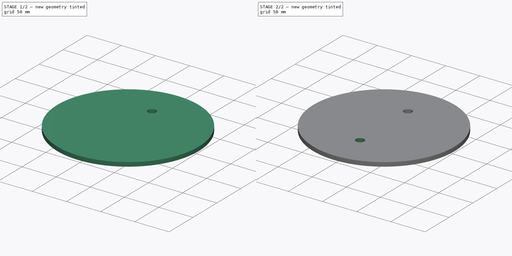
[diagram: build sequence overview — one tinted view per stage of 2, left to right]
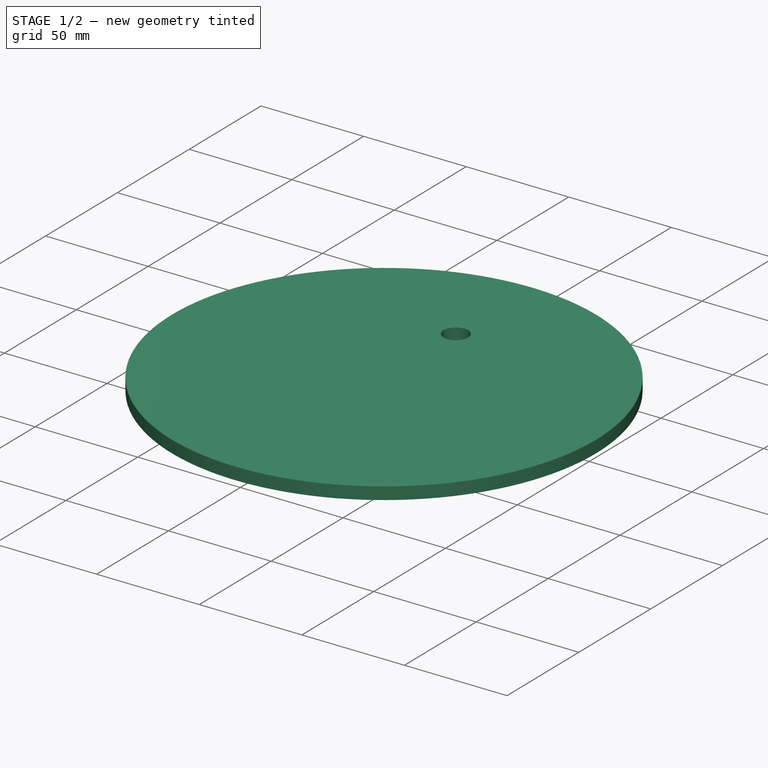
[diagram: stage 1 of 2 — iso view after this stage's code; geometry added in this stage tinted green]
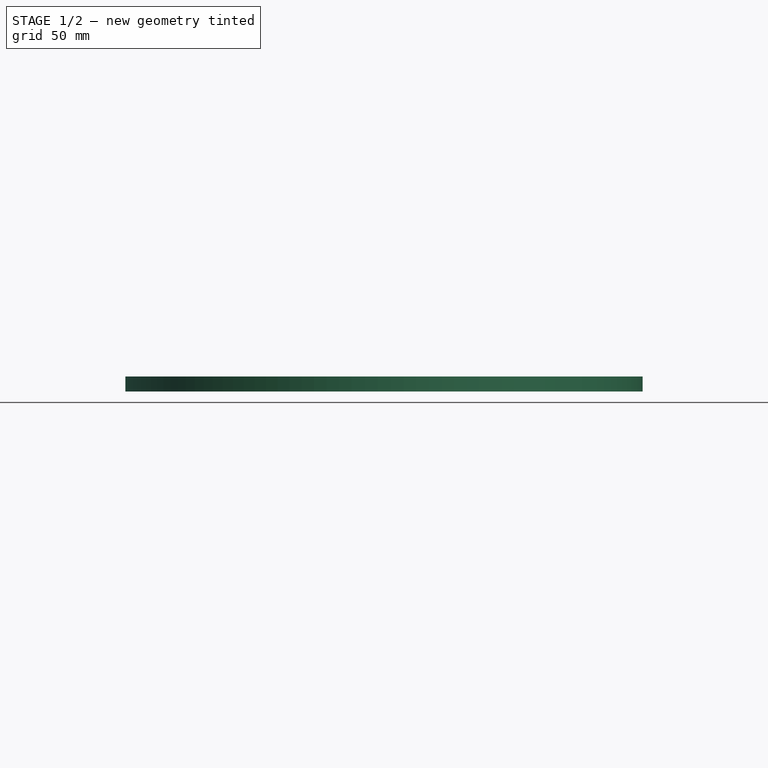
[diagram: stage 1 of 2 — front view after this stage's code; geometry added in this stage tinted green]
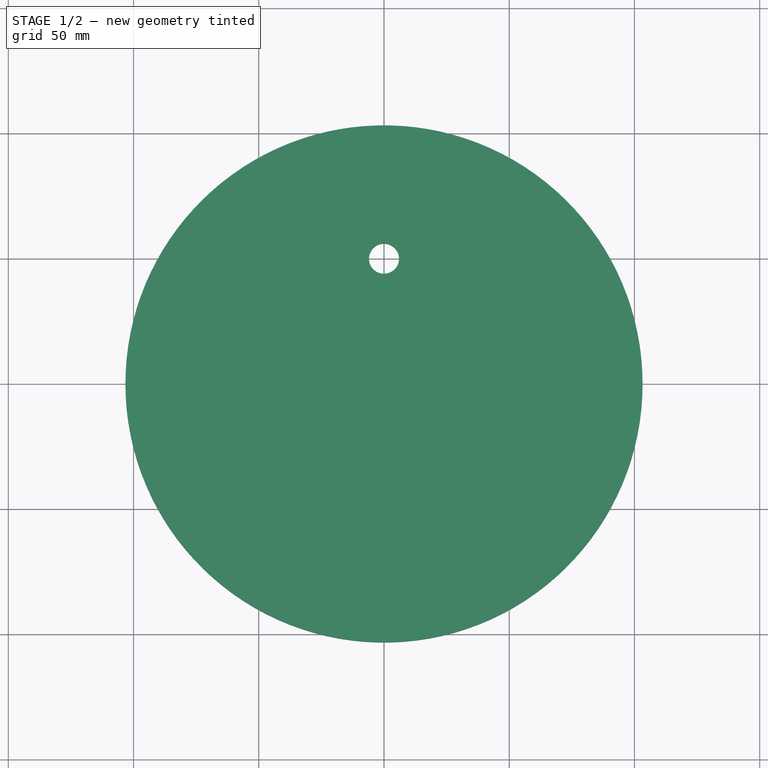
[diagram: stage 1 of 2 — top view after this stage's code; geometry added in this stage tinted green]
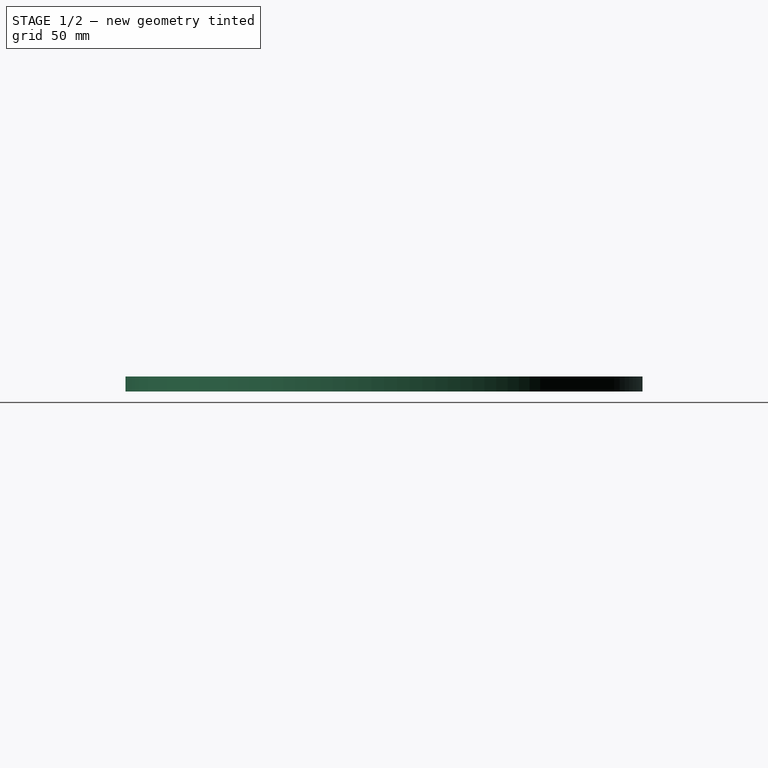
[diagram: stage 1 of 2 — right view after this stage's code; geometry added in this stage tinted green]
FCSTD DOCUMENT  (FreeCAD 0.20R29177 (Git))
Label: Rotor_MagnetJig_Disk
Comment: Similar to Rotor_Mold_Island with varying radius and thickness.
License: All rights reserved
LicenseURL: http://en.wikipedia.org/wiki/All_rights_reserved
objects: Sketcher::SketchObject×2, PartDesign::Pad×1, PartDesign::Pocket×1, Spreadsheet::Sheet×1, PartDesign::PolarPattern×1, PartDesign::Body×1
note: 8 computed .brp shape members not serialized (recipe doc carries the construction recipe); baked Part::Feature solids carry a one-line shape summary decoded from their .brp
EXTERNAL_REF file=../../../Master_of_Puppets.FCStd obj=Alternator
EXTERNAL_REF file=../../../Master_of_Puppets.FCStd obj=Hub
EXTERNAL_REF file=../../../Master_of_Puppets.FCStd obj=Spreadsheet

FEATURE [Sketcher::SketchObject] Sketch
  FullyConstrained = true
  MapMode = 5
  Support = -> [XY_Plane001]
  expr: Constraints[1] = Spreadsheet.DistanceOfMagnetFromCenter
  sketch-geometry (1):
    g0: Circle CenterX=0 CenterY=0 CenterZ=0 NormalX=0 NormalY=0 NormalZ=1 AngleXU=0 Radius=103.248
  constraints (2):
    c: Coincident(g0,g-1)
    c: Radius(g0) = 103.248
FEATURE [PartDesign::Pad] Pad
  AllowMultiFace = false
  Direction = (0,0,1)
  Length = 6
  Length2 = 100
  Profile = -> Sketch
  Type = 0
  expr: Length = Spreadsheet.MagnetJigThickness
FEATURE [Sketcher::SketchObject] Sketch001
  FullyConstrained = true
  MapMode = 5
  Placement = pos=(0,0,6) rot=(0,0,1;0rad)
  Support = -> [Pad]
  expr: Constraints[3] = Spreadsheet.HubPitchCircleRadius
  expr: Constraints[4] = Spreadsheet.HubHolesRadius
  sketch-geometry (2):
    g0: LineSegment StartX=0 StartY=50 StartZ=0 EndX=0 EndY=0 EndZ=0
    g1: Circle CenterX=0 CenterY=50 CenterZ=0 NormalX=0 NormalY=0 NormalZ=1 AngleXU=0 Radius=6
  constraints (5):
    c: Coincident(g0,g-1)
    c: Vertical(g0)
    c: Coincident(g1,g0)
    c: Distance(g0) = 50
    c: Radius(g1) = 6
FEATURE [PartDesign::Pocket] Pocket
  AllowMultiFace = false
  BaseFeature = -> Pad
  Direction = (0,0,-1)
  Length = 5
  Length2 = 100
  Profile = -> Sketch001
  Type = 1
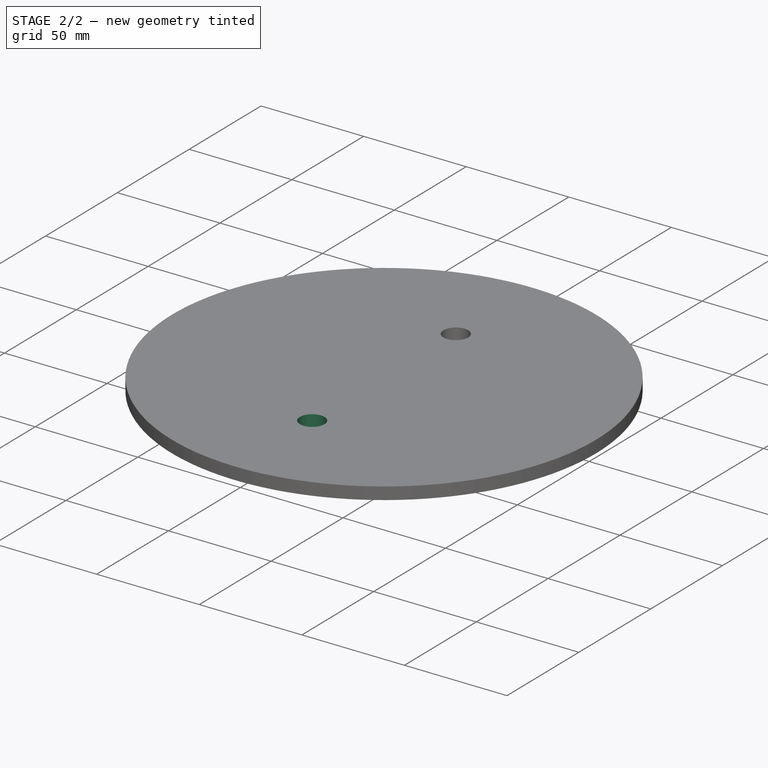
[diagram: stage 2 of 2 — iso view after this stage's code; geometry added in this stage tinted green]
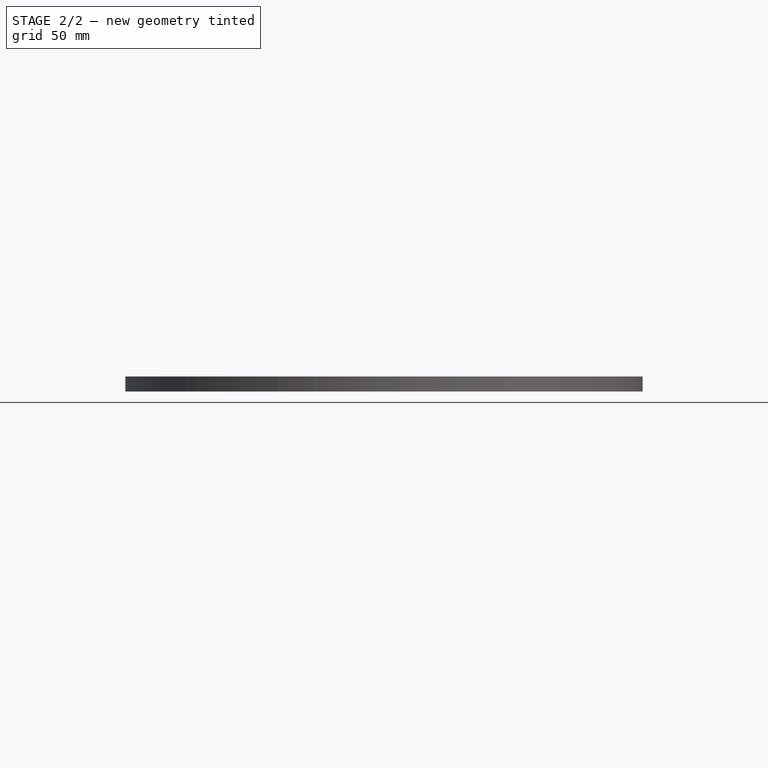
[diagram: stage 2 of 2 — front view after this stage's code; geometry added in this stage tinted green]
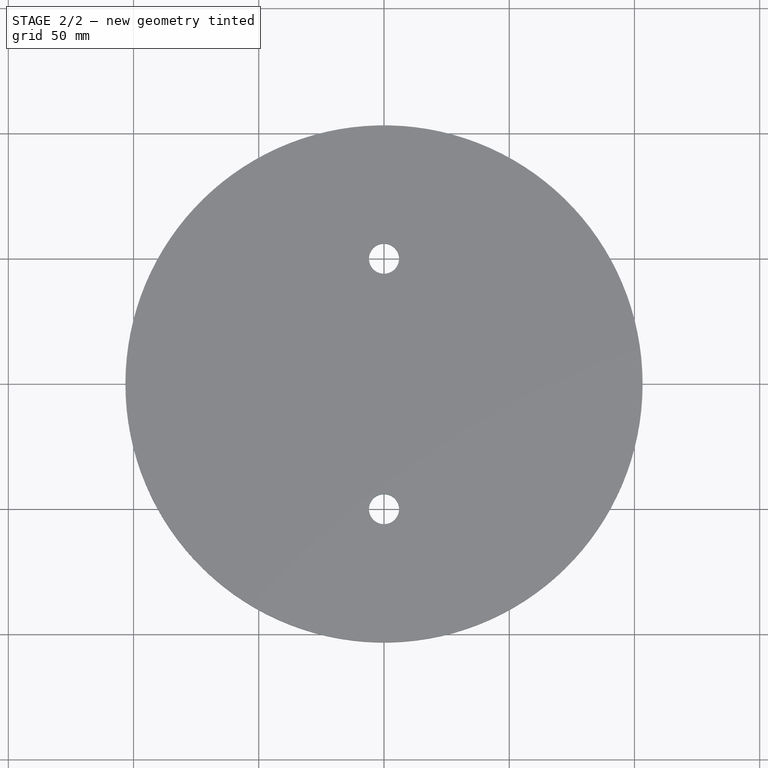
[diagram: stage 2 of 2 — top view after this stage's code; geometry added in this stage tinted green]
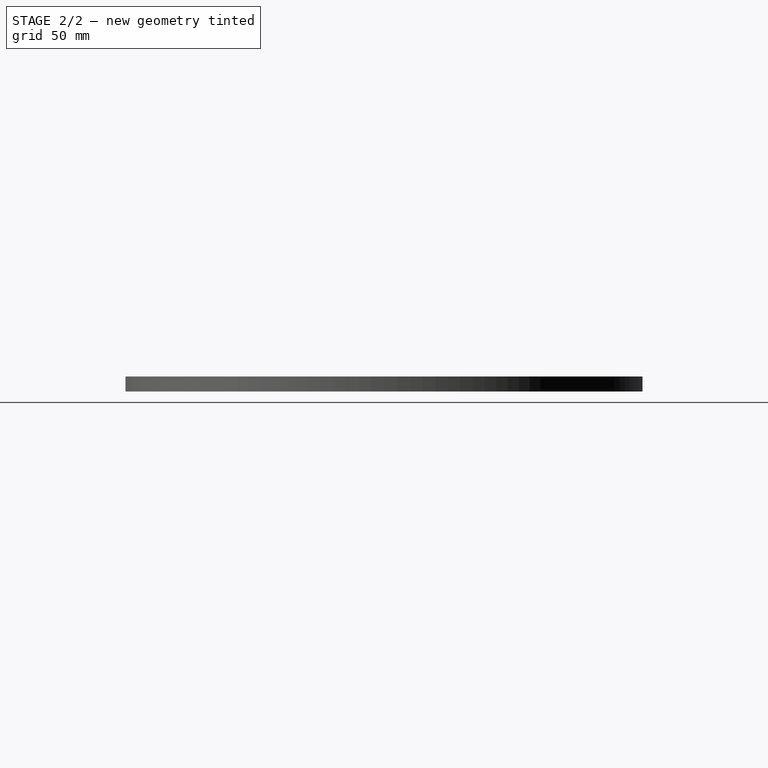
[diagram: stage 2 of 2 — right view after this stage's code; geometry added in this stage tinted green]
FEATURE [Spreadsheet::Sheet] Spreadsheet
  cells = A1=Inputs; A2=HubHolesRadius; B2(HubHolesRadius)==Master_of_Puppets#Hub.HubHolesRadius; A3=HubPitchCircleRadius; B3(HubPitchCircleRadius)==Master_of_Puppets#Hub.HubPitchCircleRadius; A4=MagnetThickness; B4(MagnetThickness)==Master_of_Puppets#Spreadsheet.MagnetThickness; A5=NumberOfRotorMoldBolts; B5(NumberOfRotorMoldBolts)==Master_of_Puppets#Alternator.NumberOfRotorMoldBolts; A6=MagnetJigThickness; B6(MagnetJigThickness)==Master_of_Puppets#Alternator.MagnetJigThickness; A7=DistanceOfMagnetFromCenter; B7(DistanceOfMagnetFromCenter)==Master_of_Puppets#Alternator.DistanceOfMagnetFromCenter
FEATURE [PartDesign::PolarPattern] PolarPattern
  Angle = 360
  Axis = -> Sketch001 [N_Axis]
  BaseFeature = -> Pocket
  Occurrences = 2
  Originals = -> [Pocket]
  expr: Occurrences = Spreadsheet.NumberOfRotorMoldBolts
FEATURE [PartDesign::Body] PocketBody  label="Rotor_MagnetJig_Disk"
  Group = -> [Sketch,Pad,Sketch001,Pocket,PolarPattern]
  Openafpm_Flat = true
  Origin = -> Origin001
  Tip = -> PolarPattern
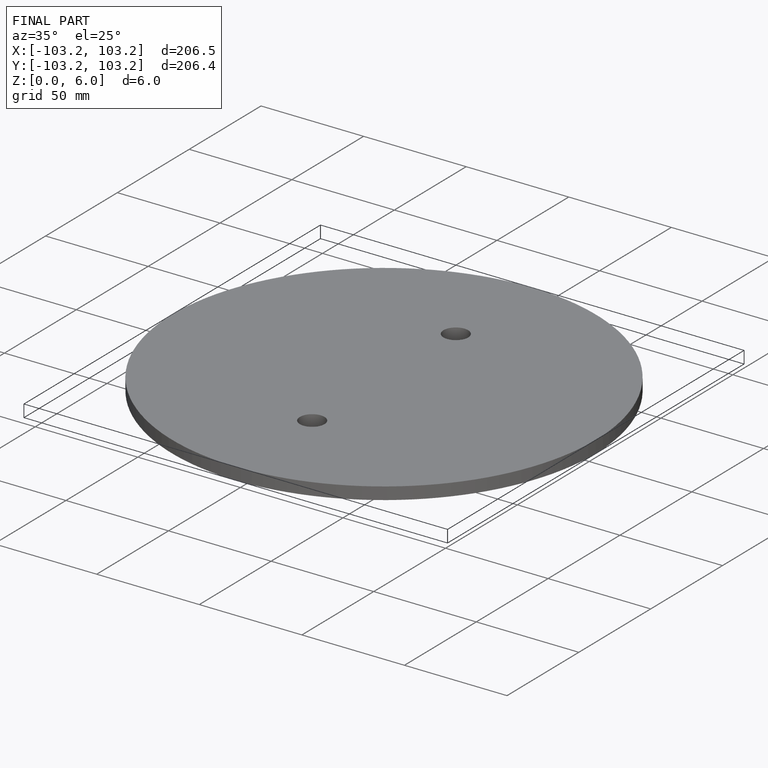
[diagram: finished part — iso view with bounding-box wireframe]
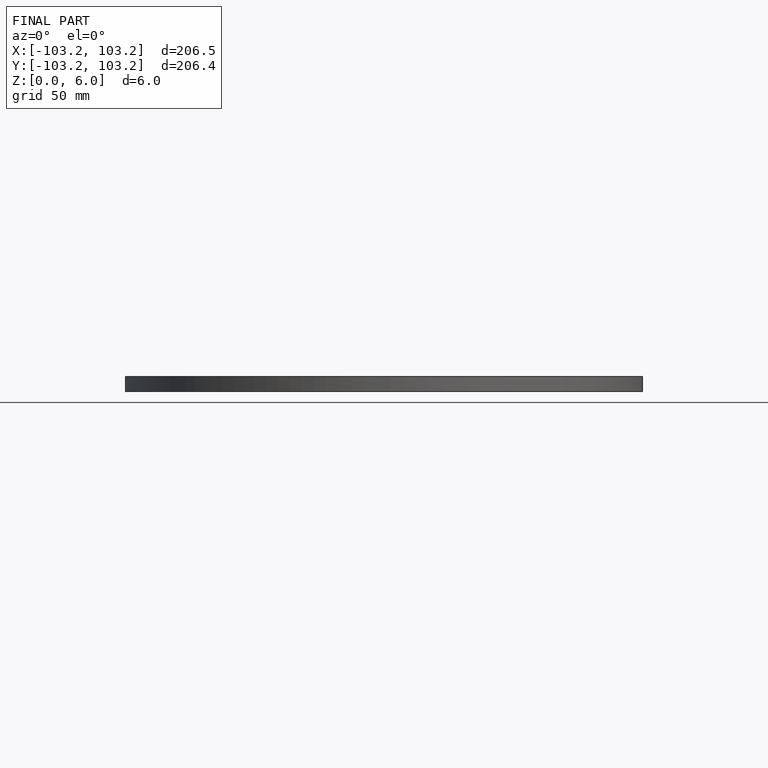
[diagram: finished part — front view with bounding-box wireframe]
